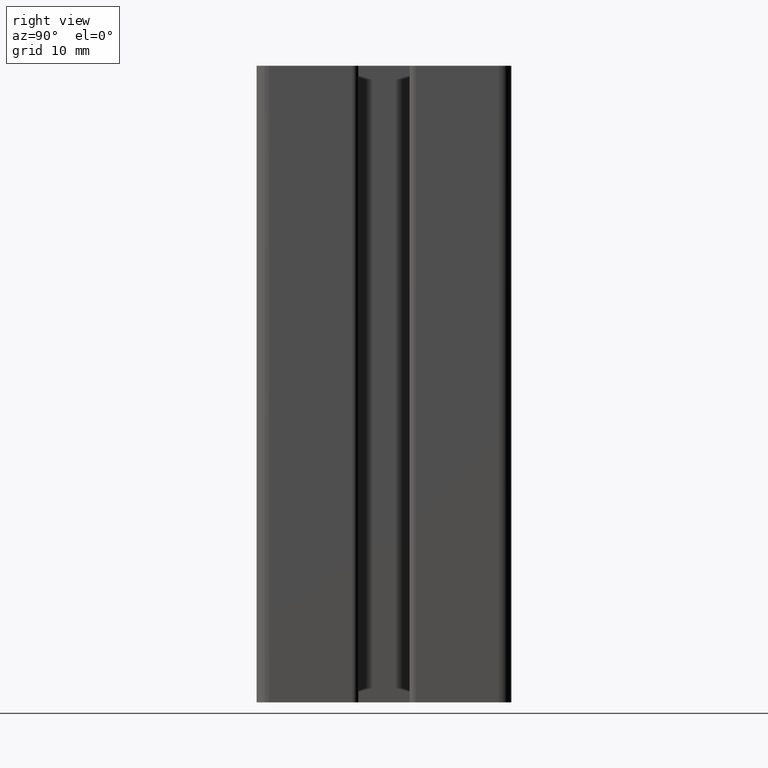
[diagram: clean part render]
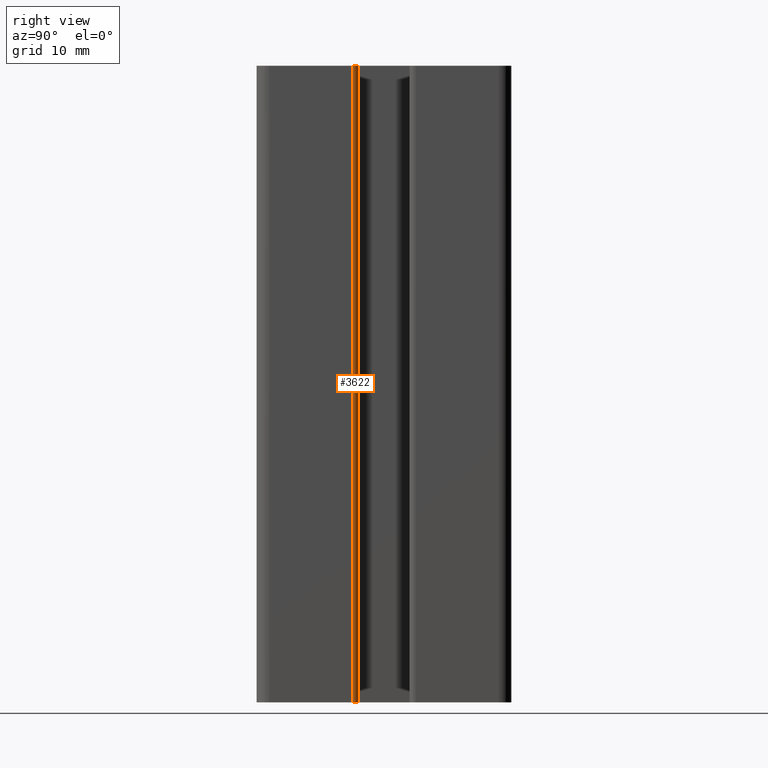
[diagram: same view with one face highlighted and labeled with its STEP entity id]
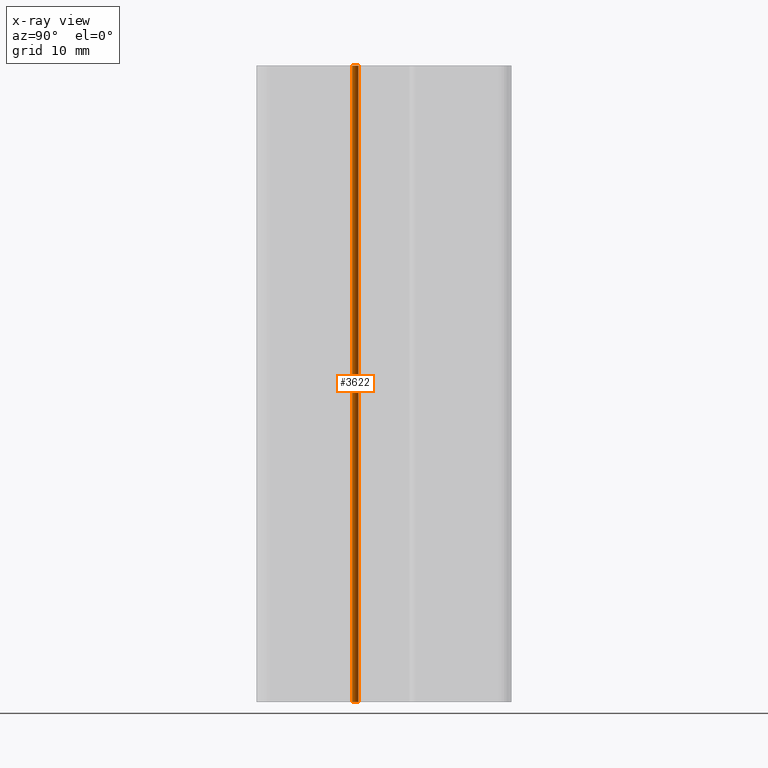
[diagram: x-ray of the same camera — body ghosted, the highlighted face saturated]
A machine part, right view. The second image highlights one B-rep face of the part: STEP entity #3622.
The next image is the same camera in x-ray: the body ghosted, the highlighted face saturated — about 0% of this face is hidden behind the body in this view.
In plain terms, the highlighted cylindrical surface (edge-blend (fillet) strip) has radius 1 mm, axis along (0, 0, 1).
Its self-contained STEP definition (entity closure, byte-faithful):
#259=FACE_OUTER_BOUND('',#442,.T.);
#442=EDGE_LOOP('',(#2869,#2870,#2871,#2872));
#775=LINE('',#5978,#1138);
#776=LINE('',#5981,#1139);
#1138=VECTOR('',#4886,100.);
#1139=VECTOR('',#4889,100.);
#1364=CIRCLE('',#3952,1.);
#1365=CIRCLE('',#3953,1.);
#1686=VERTEX_POINT('',#5974);
#1687=VERTEX_POINT('',#5975);
#1688=VERTEX_POINT('',#5977);
#1689=VERTEX_POINT('',#5979);
#2187=EDGE_CURVE('',#1686,#1687,#1364,.T.);
#2188=EDGE_CURVE('',#1686,#1688,#775,.T.);
#2189=EDGE_CURVE('',#1689,#1688,#1365,.T.);
#2190=EDGE_CURVE('',#1689,#1687,#776,.T.);
#2869=ORIENTED_EDGE('',*,*,#2187,.F.);
#2870=ORIENTED_EDGE('',*,*,#2188,.T.);
#2871=ORIENTED_EDGE('',*,*,#2189,.F.);
#2872=ORIENTED_EDGE('',*,*,#2190,.T.);
#3463=CYLINDRICAL_SURFACE('',#3951,1.);
#3622=ADVANCED_FACE('',(#259),#3463,.T.);
#3951=AXIS2_PLACEMENT_3D('',#5973,#4882,#4883);
#3952=AXIS2_PLACEMENT_3D('',#5976,#4884,#4885);
#3953=AXIS2_PLACEMENT_3D('',#5980,#4887,#4888);
#4882=DIRECTION('center_axis',(0.,0.,1.));
#4883=DIRECTION('ref_axis',(-1.,1.33226762955018E-14,0.));
#4884=DIRECTION('center_axis',(0.,0.,1.));
#4885=DIRECTION('ref_axis',(-1.,1.33226762955018E-14,0.));
#4886=DIRECTION('',(0.,0.,-1.));
#4887=DIRECTION('center_axis',(0.,0.,-1.));
#4888=DIRECTION('ref_axis',(-1.,1.33226762955018E-14,0.));
#4889=DIRECTION('',(0.,0.,1.));
#5973=CARTESIAN_POINT('Origin',(19.,-5.00001299999999,0.));
#5974=CARTESIAN_POINT('',(20.,-5.00001300000001,100.));
#5975=CARTESIAN_POINT('',(19.,-4.00001299999999,100.));
#5976=CARTESIAN_POINT('Origin',(19.,-5.00001299999999,100.));
#5977=CARTESIAN_POINT('',(20.,-5.00001300000001,0.));
#5978=CARTESIAN_POINT('',(20.,-5.00001299999999,0.));
#5979=CARTESIAN_POINT('',(19.,-4.00001299999999,0.));
#5980=CARTESIAN_POINT('Origin',(19.,-5.00001299999999,0.));
#5981=CARTESIAN_POINT('',(19.,-4.00001299999999,0.));